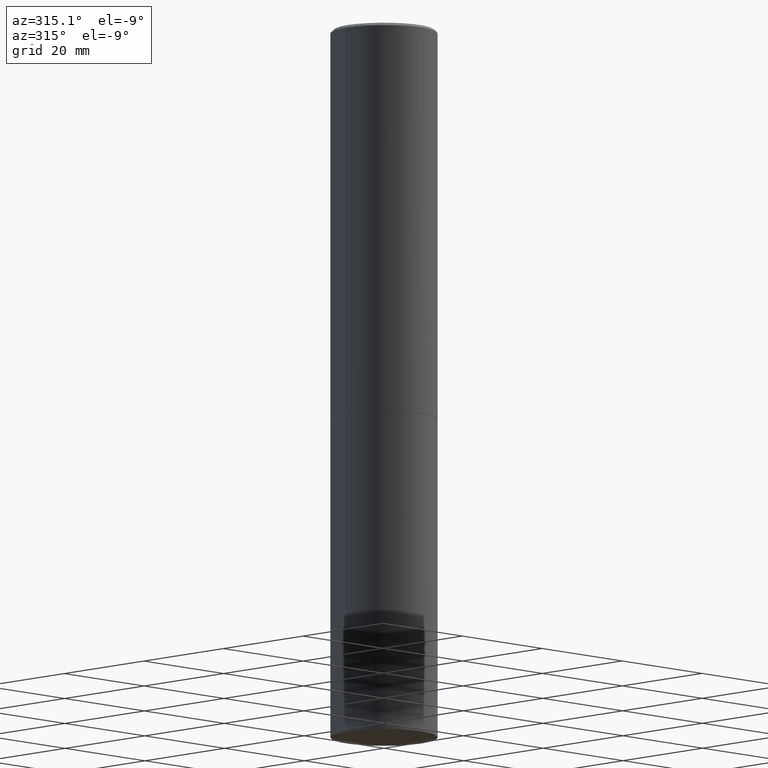
[diagram: clean part render]
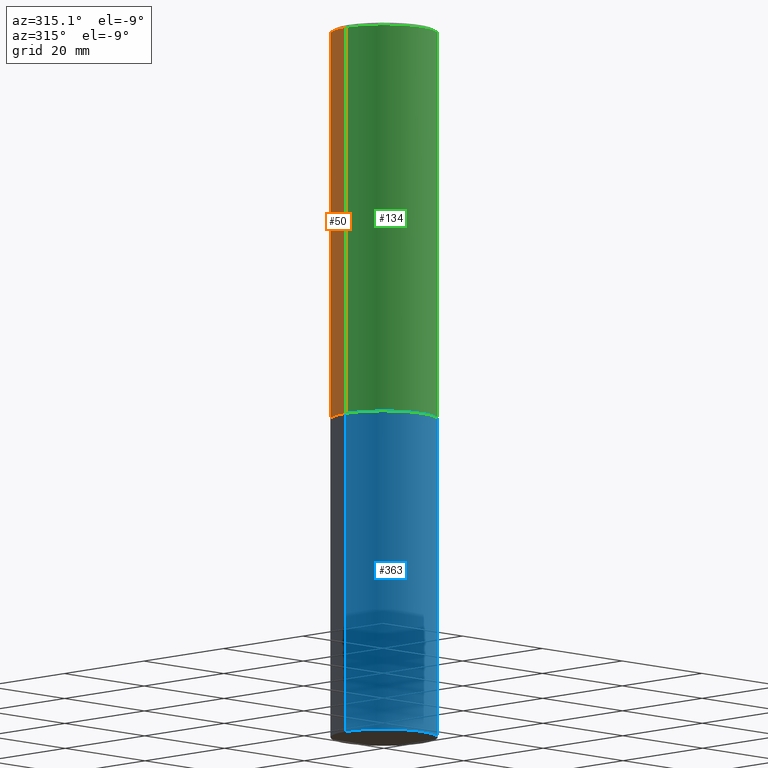
[diagram: same view with three faces highlighted in distinct colors, each labeled with its STEP entity id]
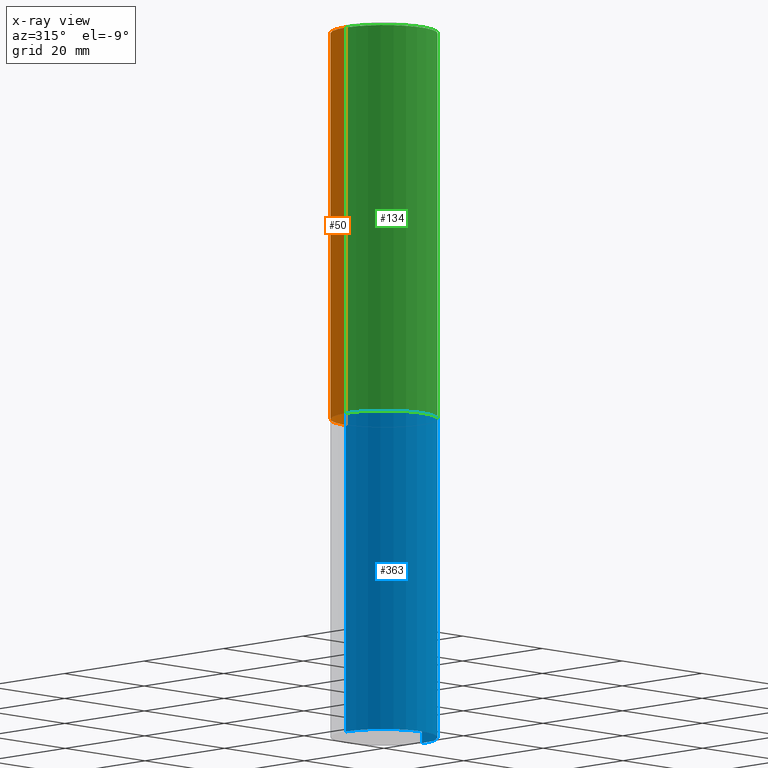
[diagram: x-ray of the same camera — body ghosted, the three highlighted faces saturated]
A machine part, auxiliary view with three faces highlighted in distinct colors.
The next image is the same camera in x-ray (body ghosted, the three faces saturated) — at least one of them is partly hidden behind the body in this view.
Their STEP definitions:

[orange] entity #50 — the highlighted cylindrical surface (partial cylindrical patch) has radius 9.525 mm, axis along (-0, 0, 1).
#3 = ORIENTED_EDGE ( 'NONE', *, *, #290, .T. ) ;
#7 = AXIS2_PLACEMENT_3D ( 'NONE', #15, #20, #246 ) ;
#8 = DIRECTION ( 'NONE',  ( -2.445468806185136597E-29, 3.491481338843145583E-15, 1.000000000000000000 ) ) ;
#9 = CARTESIAN_POINT ( 'NONE',  ( -0.3749999999999999445, -2.169420654527958984E-15, -2.749000000000000554 ) ) ;
#15 = CARTESIAN_POINT ( 'NONE',  ( 6.722593748202942280E-29, -9.598082200479810007E-15, -2.749000000000000554 ) ) ;
#20 = DIRECTION ( 'NONE',  ( -2.445468806185136597E-29, 3.491481338843145583E-15, 1.000000000000000000 ) ) ;
#33 = EDGE_LOOP ( 'NONE', ( #197, #3, #169, #54 ) ) ;
#47 = DIRECTION ( 'NONE',  ( -2.445468806185136877E-29, 3.491481338843145188E-15, 1.000000000000000000 ) ) ;
#50 = ADVANCED_FACE ( 'NONE', ( #198 ), #339, .T. ) ;
#54 = ORIENTED_EDGE ( 'NONE', *, *, #318, .F. ) ;
#57 = DIRECTION ( 'NONE',  ( 1.000000000000000000, -6.982962677686265922E-15, 4.876176775795935793E-29 ) ) ;
#74 = VECTOR ( 'NONE', #47, 39.37007874015748143 ) ;
#78 = AXIS2_PLACEMENT_3D ( 'NONE', #293, #8, #132 ) ;
#79 = VERTEX_POINT ( 'NONE', #222 ) ;
#80 = LINE ( 'NONE', #358, #74 ) ;
#87 = CARTESIAN_POINT ( 'NONE',  ( 0.000000000000000000, 0.000000000000000000, 0.000000000000000000 ) ) ;
#90 = EDGE_CURVE ( 'NONE', #149, #79, #319, .T. ) ;
#103 = CARTESIAN_POINT ( 'NONE',  ( 0.3749999999999998335, -2.618611004132348439E-15, 1.828566290923475082E-29 ) ) ;
#110 = VERTEX_POINT ( 'NONE', #9 ) ;
#132 = DIRECTION ( 'NONE',  ( 1.000000000000000000, -6.982962677686266711E-15, 0.000000000000000000 ) ) ;
#149 = VERTEX_POINT ( 'NONE', #215 ) ;
#167 = VERTEX_POINT ( 'NONE', #295 ) ;
#169 = ORIENTED_EDGE ( 'NONE', *, *, #90, .F. ) ;
#178 = CIRCLE ( 'NONE', #7, 0.3750000000000000555 ) ;
#197 = ORIENTED_EDGE ( 'NONE', *, *, #307, .T. ) ;
#198 = FACE_OUTER_BOUND ( 'NONE', #33, .T. ) ;
#215 = CARTESIAN_POINT ( 'NONE',  ( 0.3749999999999996114, -2.642516375941185268E-15, -0.02000000000000005940 ) ) ;
#220 = DIRECTION ( 'NONE',  ( -2.445468806185136877E-29, 3.491481338843145188E-15, 1.000000000000000000 ) ) ;
#222 = CARTESIAN_POINT ( 'NONE',  ( -0.3749999999999996114, 2.548781377355483957E-15, -0.02000000000000005940 ) ) ;
#235 = DIRECTION ( 'NONE',  ( -2.445468806185136597E-29, 3.491481338843145583E-15, 1.000000000000000000 ) ) ;
#246 = DIRECTION ( 'NONE',  ( 1.000000000000000000, -6.982962677686266711E-15, 0.000000000000000000 ) ) ;
#273 = VECTOR ( 'NONE', #220, 39.37007874015748143 ) ;
#290 = EDGE_CURVE ( 'NONE', #110, #79, #80, .T. ) ;
#293 = CARTESIAN_POINT ( 'NONE',  ( 4.890937612370288047E-31, -6.982962677686311331E-17, -0.02000000000000005940 ) ) ;
#295 = CARTESIAN_POINT ( 'NONE',  ( 0.3750000000000000555, -1.221669320461216002E-14, -2.749000000000000554 ) ) ;
#304 = AXIS2_PLACEMENT_3D ( 'NONE', #87, #235, #57 ) ;
#307 = EDGE_CURVE ( 'NONE', #167, #110, #178, .T. ) ;
#318 = EDGE_CURVE ( 'NONE', #167, #149, #352, .T. ) ;
#319 = CIRCLE ( 'NONE', #78, 0.3749999999999996114 ) ;
#339 = CYLINDRICAL_SURFACE ( 'NONE', #304, 0.3749999999999998335 ) ;
#352 = LINE ( 'NONE', #103, #273 ) ;
#358 = CARTESIAN_POINT ( 'NONE',  ( -0.3749999999999998335, 2.664535259100374514E-15, -1.844600658845588757E-29 ) ) ;

[blue] entity #363 — the highlighted cylindrical surface (partial cylindrical patch) has radius 9.525 mm, axis along (-0, 0, 1).
#5 = EDGE_LOOP ( 'NONE', ( #183, #359, #329, #315 ) ) ;
#11 = DIRECTION ( 'NONE',  ( -2.445468806185136597E-29, 3.491481338843145583E-15, 1.000000000000000000 ) ) ;
#22 = VERTEX_POINT ( 'NONE', #63 ) ;
#41 = VECTOR ( 'NONE', #69, 39.37007874015748143 ) ;
#63 = CARTESIAN_POINT ( 'NONE',  ( 0.3750000000000000555, -2.007601769834807990E-14, -5.000000000000000000 ) ) ;
#69 = DIRECTION ( 'NONE',  ( -2.445468806185136877E-29, 3.491481338843145188E-15, 1.000000000000000000 ) ) ;
#77 = DIRECTION ( 'NONE',  ( -2.445468806185136597E-29, 3.491481338843145583E-15, 1.000000000000000000 ) ) ;
#84 = EDGE_CURVE ( 'NONE', #291, #172, #332, .T. ) ;
#99 = EDGE_CURVE ( 'NONE', #22, #172, #212, .T. ) ;
#106 = CARTESIAN_POINT ( 'NONE',  ( 0.000000000000000000, 0.000000000000000000, 0.000000000000000000 ) ) ;
#108 = CARTESIAN_POINT ( 'NONE',  ( -0.3750000000000000555, 2.664535259100376091E-15, -1.844600658845589598E-29 ) ) ;
#144 = AXIS2_PLACEMENT_3D ( 'NONE', #326, #77, #300 ) ;
#157 = CIRCLE ( 'NONE', #144, 0.3750000000000000555 ) ;
#161 = CARTESIAN_POINT ( 'NONE',  ( 0.3750000000000000555, -1.222018468595100145E-14, -2.750000000000000000 ) ) ;
#164 = AXIS2_PLACEMENT_3D ( 'NONE', #106, #262, #227 ) ;
#171 = CARTESIAN_POINT ( 'NONE',  ( -0.3750000000000000555, -1.086495492891681496E-14, -2.750000000000000000 ) ) ;
#172 = VERTEX_POINT ( 'NONE', #161 ) ;
#183 = ORIENTED_EDGE ( 'NONE', *, *, #282, .F. ) ;
#212 = LINE ( 'NONE', #299, #41 ) ;
#224 = LINE ( 'NONE', #108, #324 ) ;
#227 = DIRECTION ( 'NONE',  ( 1.000000000000000000, -6.982962677686265922E-15, 4.876176775795935793E-29 ) ) ;
#230 = AXIS2_PLACEMENT_3D ( 'NONE', #267, #11, #350 ) ;
#249 = FACE_OUTER_BOUND ( 'NONE', #5, .T. ) ;
#262 = DIRECTION ( 'NONE',  ( -2.445468806185136597E-29, 3.491481338843145583E-15, 1.000000000000000000 ) ) ;
#267 = CARTESIAN_POINT ( 'NONE',  ( 6.725039217009124520E-29, -9.601573681818649859E-15, -2.750000000000000000 ) ) ;
#275 = CARTESIAN_POINT ( 'NONE',  ( -0.3750000000000000555, -1.086495492891681496E-14, -5.000000000000000000 ) ) ;
#282 = EDGE_CURVE ( 'NONE', #301, #291, #224, .T. ) ;
#291 = VERTEX_POINT ( 'NONE', #171 ) ;
#299 = CARTESIAN_POINT ( 'NONE',  ( 0.3750000000000000555, -2.618611004132350016E-15, 1.828566290923476203E-29 ) ) ;
#300 = DIRECTION ( 'NONE',  ( 1.000000000000000000, -6.982962677686266711E-15, 0.000000000000000000 ) ) ;
#301 = VERTEX_POINT ( 'NONE', #275 ) ;
#315 = ORIENTED_EDGE ( 'NONE', *, *, #84, .F. ) ;
#324 = VECTOR ( 'NONE', #362, 39.37007874015748143 ) ;
#326 = CARTESIAN_POINT ( 'NONE',  ( 1.222734403092568523E-28, -1.745740669421572989E-14, -5.000000000000000000 ) ) ;
#329 = ORIENTED_EDGE ( 'NONE', *, *, #99, .T. ) ;
#330 = EDGE_CURVE ( 'NONE', #301, #22, #157, .T. ) ;
#332 = CIRCLE ( 'NONE', #230, 0.3750000000000000555 ) ;
#350 = DIRECTION ( 'NONE',  ( 1.000000000000000000, -6.982962677686266711E-15, 0.000000000000000000 ) ) ;
#355 = CYLINDRICAL_SURFACE ( 'NONE', #164, 0.3750000000000000555 ) ;
#359 = ORIENTED_EDGE ( 'NONE', *, *, #330, .T. ) ;
#362 = DIRECTION ( 'NONE',  ( -2.445468806185136877E-29, 3.491481338843145188E-15, 1.000000000000000000 ) ) ;
#363 = ADVANCED_FACE ( 'NONE', ( #249 ), #355, .T. ) ;

[green] entity #134 — the highlighted cylindrical surface (partial cylindrical patch) has radius 9.525 mm, axis along (-0, 0, 1).
#9 = CARTESIAN_POINT ( 'NONE',  ( -0.3749999999999999445, -2.169420654527958984E-15, -2.749000000000000554 ) ) ;
#32 = CARTESIAN_POINT ( 'NONE',  ( 6.722593748202942280E-29, -9.598082200479810007E-15, -2.749000000000000554 ) ) ;
#37 = DIRECTION ( 'NONE',  ( -2.445468806185136597E-29, 3.491481338843145583E-15, 1.000000000000000000 ) ) ;
#47 = DIRECTION ( 'NONE',  ( -2.445468806185136877E-29, 3.491481338843145188E-15, 1.000000000000000000 ) ) ;
#49 = ORIENTED_EDGE ( 'NONE', *, *, #140, .F. ) ;
#64 = CARTESIAN_POINT ( 'NONE',  ( 4.890937612370288047E-31, -6.982962677686311331E-17, -0.02000000000000005940 ) ) ;
#70 = EDGE_CURVE ( 'NONE', #110, #167, #96, .T. ) ;
#74 = VECTOR ( 'NONE', #47, 39.37007874015748143 ) ;
#79 = VERTEX_POINT ( 'NONE', #222 ) ;
#80 = LINE ( 'NONE', #358, #74 ) ;
#96 = CIRCLE ( 'NONE', #173, 0.3750000000000000555 ) ;
#103 = CARTESIAN_POINT ( 'NONE',  ( 0.3749999999999998335, -2.618611004132348439E-15, 1.828566290923475082E-29 ) ) ;
#107 = EDGE_LOOP ( 'NONE', ( #180, #233, #312, #49 ) ) ;
#110 = VERTEX_POINT ( 'NONE', #9 ) ;
#127 = FACE_OUTER_BOUND ( 'NONE', #107, .T. ) ;
#134 = ADVANCED_FACE ( 'NONE', ( #127 ), #320, .T. ) ;
#140 = EDGE_CURVE ( 'NONE', #79, #149, #163, .T. ) ;
#149 = VERTEX_POINT ( 'NONE', #215 ) ;
#163 = CIRCLE ( 'NONE', #223, 0.3749999999999996114 ) ;
#167 = VERTEX_POINT ( 'NONE', #295 ) ;
#173 = AXIS2_PLACEMENT_3D ( 'NONE', #32, #251, #357 ) ;
#180 = ORIENTED_EDGE ( 'NONE', *, *, #290, .F. ) ;
#195 = DIRECTION ( 'NONE',  ( 1.000000000000000000, -6.982962677686266711E-15, 0.000000000000000000 ) ) ;
#215 = CARTESIAN_POINT ( 'NONE',  ( 0.3749999999999996114, -2.642516375941185268E-15, -0.02000000000000005940 ) ) ;
#220 = DIRECTION ( 'NONE',  ( -2.445468806185136877E-29, 3.491481338843145188E-15, 1.000000000000000000 ) ) ;
#222 = CARTESIAN_POINT ( 'NONE',  ( -0.3749999999999996114, 2.548781377355483957E-15, -0.02000000000000005940 ) ) ;
#223 = AXIS2_PLACEMENT_3D ( 'NONE', #64, #37, #195 ) ;
#233 = ORIENTED_EDGE ( 'NONE', *, *, #70, .T. ) ;
#241 = CARTESIAN_POINT ( 'NONE',  ( 0.000000000000000000, 0.000000000000000000, 0.000000000000000000 ) ) ;
#245 = DIRECTION ( 'NONE',  ( -2.445468806185136597E-29, 3.491481338843145583E-15, 1.000000000000000000 ) ) ;
#251 = DIRECTION ( 'NONE',  ( -2.445468806185136597E-29, 3.491481338843145583E-15, 1.000000000000000000 ) ) ;
#253 = AXIS2_PLACEMENT_3D ( 'NONE', #241, #245, #316 ) ;
#273 = VECTOR ( 'NONE', #220, 39.37007874015748143 ) ;
#290 = EDGE_CURVE ( 'NONE', #110, #79, #80, .T. ) ;
#295 = CARTESIAN_POINT ( 'NONE',  ( 0.3750000000000000555, -1.221669320461216002E-14, -2.749000000000000554 ) ) ;
#312 = ORIENTED_EDGE ( 'NONE', *, *, #318, .T. ) ;
#316 = DIRECTION ( 'NONE',  ( 1.000000000000000000, -6.982962677686265922E-15, 4.876176775795935793E-29 ) ) ;
#318 = EDGE_CURVE ( 'NONE', #167, #149, #352, .T. ) ;
#320 = CYLINDRICAL_SURFACE ( 'NONE', #253, 0.3749999999999998335 ) ;
#352 = LINE ( 'NONE', #103, #273 ) ;
#357 = DIRECTION ( 'NONE',  ( 1.000000000000000000, -6.982962677686266711E-15, 0.000000000000000000 ) ) ;
#358 = CARTESIAN_POINT ( 'NONE',  ( -0.3749999999999998335, 2.664535259100374514E-15, -1.844600658845588757E-29 ) ) ;